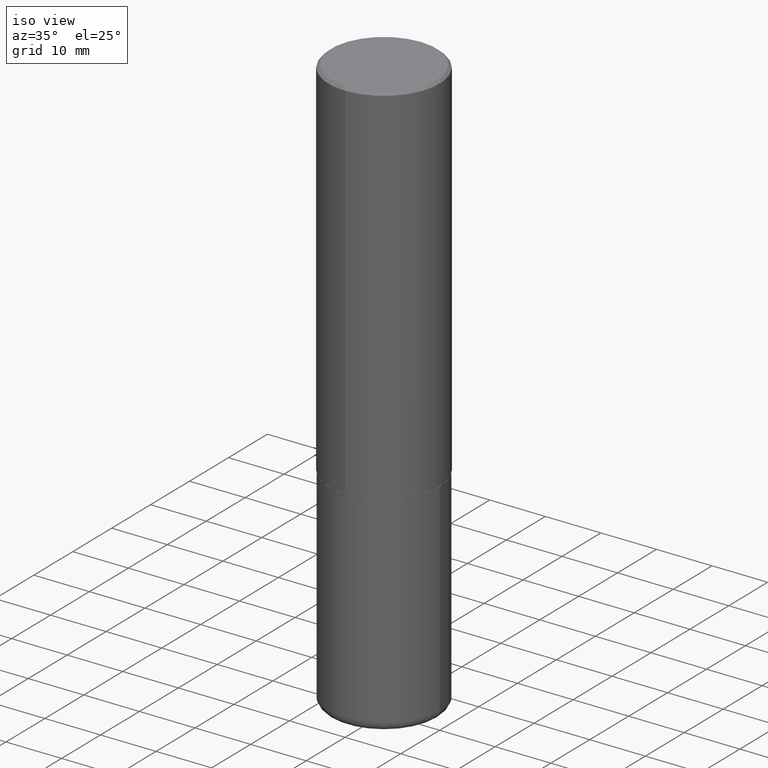
[diagram: clean part render]
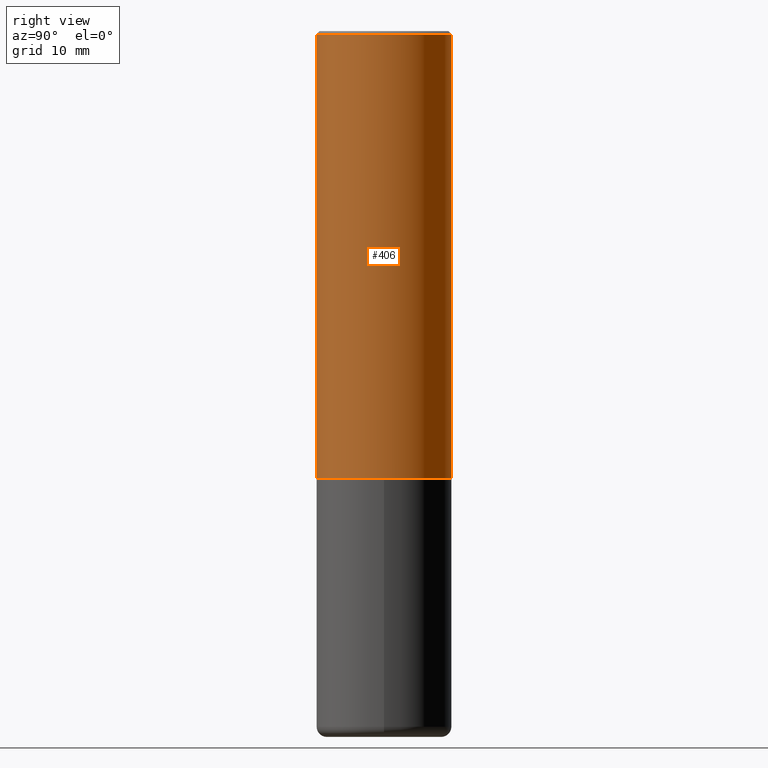
[diagram: tour spotlight — one face highlighted and labeled with its STEP entity id]
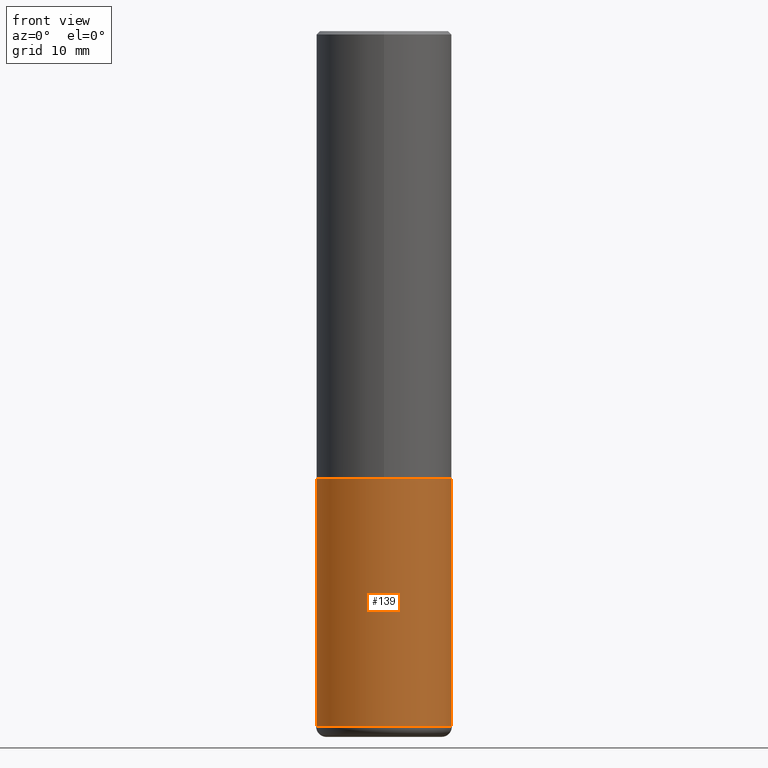
[diagram: tour spotlight — one face highlighted and labeled with its STEP entity id]
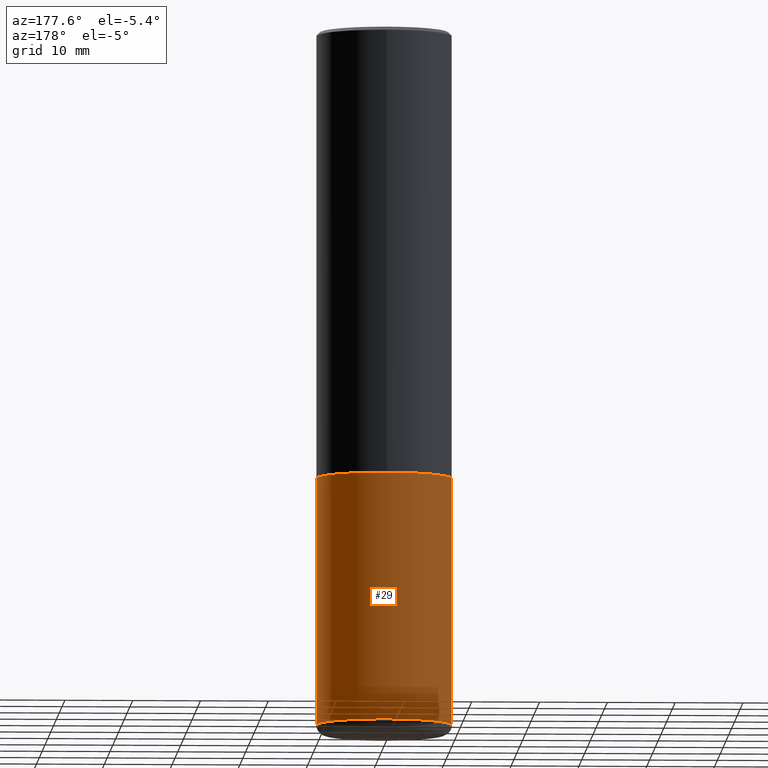
[diagram: tour spotlight — one face highlighted and labeled with its STEP entity id]
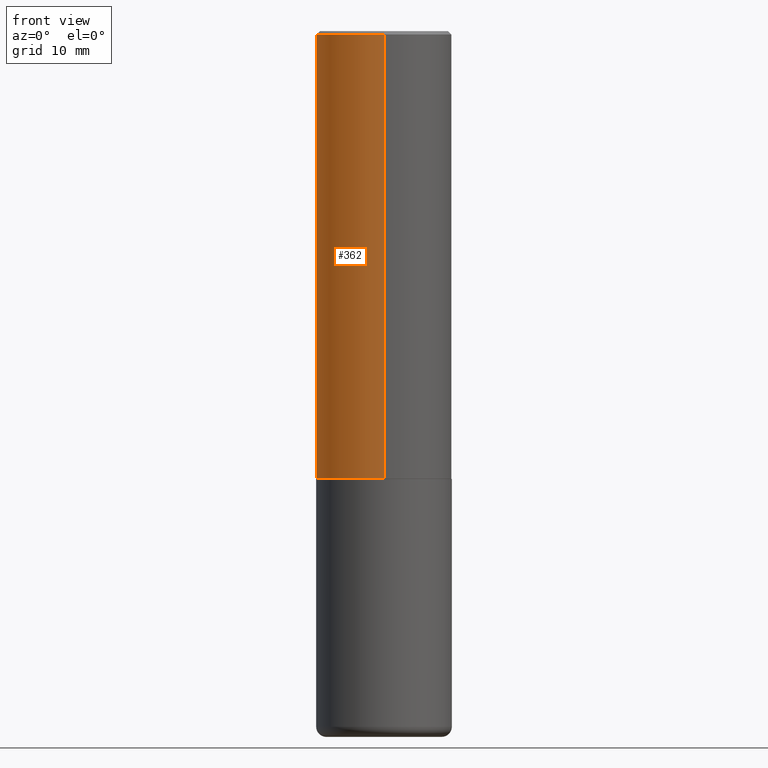
[diagram: tour spotlight — one face highlighted and labeled with its STEP entity id]
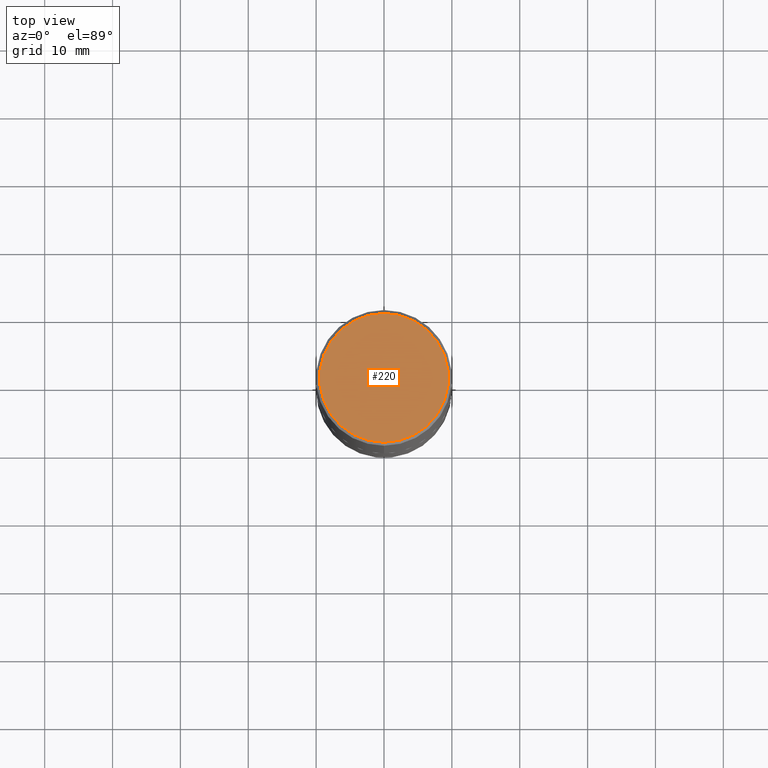
[diagram: tour spotlight — one face highlighted and labeled with its STEP entity id]
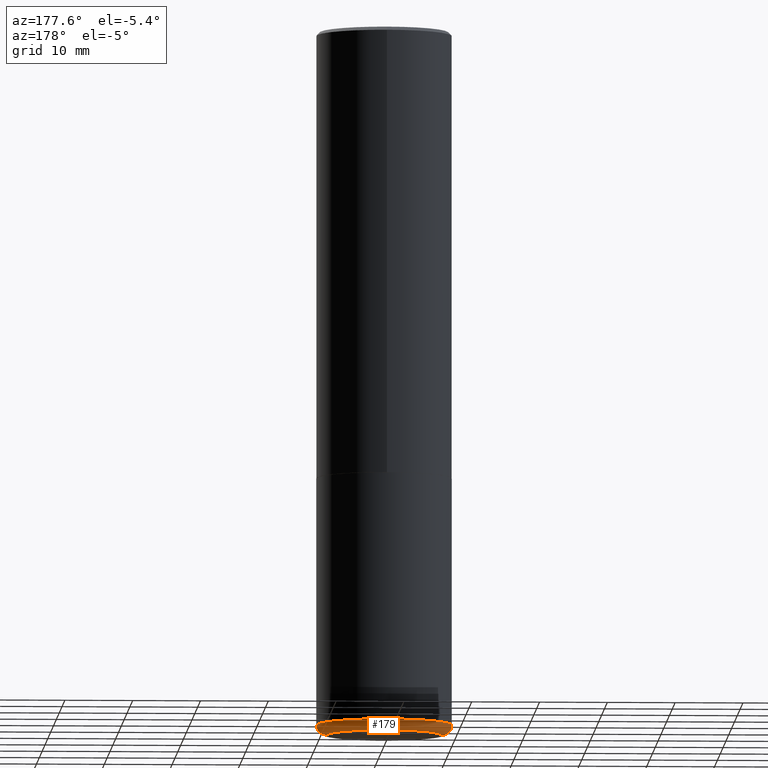
[diagram: tour spotlight — one face highlighted and labeled with its STEP entity id]
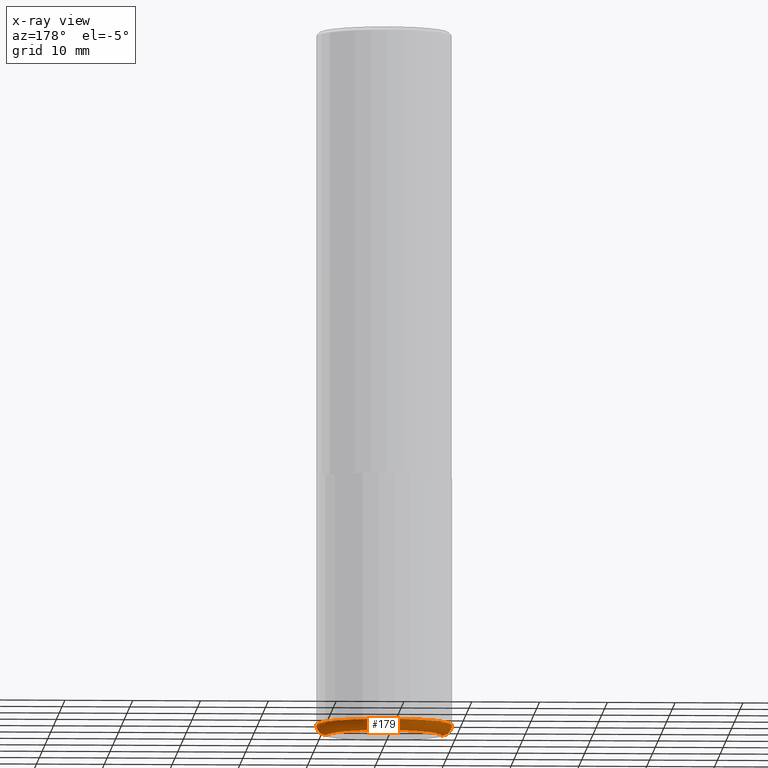
[diagram: x-ray of the same camera — body ghosted, this tour face saturated]
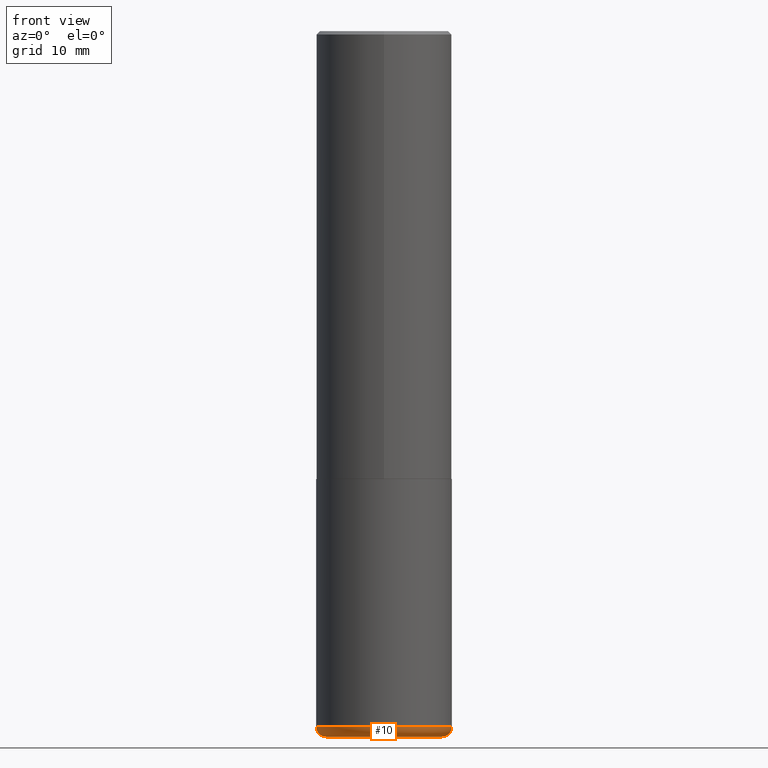
[diagram: tour spotlight — one face highlighted and labeled with its STEP entity id]
A machine part: a face-by-face anatomy tour. The part has 14 B-rep faces; the first image is the clean iso view, then the 7 largest visible faces are spotlighted one at a time (largest first), each with its STEP entity span.

Face 1 — right view, entity #406. In plain terms, the highlighted cylindrical surface (partial cylindrical patch) has radius 10 mm, axis along (-0, 0, 1).
Definition (entity closure, byte-faithful):
#2 = DIRECTION ( 'NONE',  ( -2.446544762670070831E-29, 3.489940507917079412E-15, 1.000000000000000000 ) ) ;
#18 = DIRECTION ( 'NONE',  ( -6.982962677686265133E-15, -1.000000000000000000, 3.489940507917079412E-15 ) ) ;
#39 = VERTEX_POINT ( 'NONE', #307 ) ;
#49 = CARTESIAN_POINT ( 'NONE',  ( 2.797406750687514786E-15, 0.3937000000000001054, -1.373989577966954523E-15 ) ) ;
#53 = AXIS2_PLACEMENT_3D ( 'NONE', #320, #2, #126 ) ;
#74 = ORIENTED_EDGE ( 'NONE', *, *, #256, .T. ) ;
#101 = EDGE_CURVE ( 'NONE', #302, #39, #221, .T. ) ;
#103 = FACE_OUTER_BOUND ( 'NONE', #264, .T. ) ;
#109 = DIRECTION ( 'NONE',  ( -2.446544762670070831E-29, 3.489940507917079412E-15, 1.000000000000000000 ) ) ;
#111 = ORIENTED_EDGE ( 'NONE', *, *, #101, .F. ) ;
#126 = DIRECTION ( 'NONE',  ( -6.982962677686265922E-15, -1.000000000000000000, 4.163344669033672479E-15 ) ) ;
#131 = EDGE_CURVE ( 'NONE', #39, #146, #206, .T. ) ;
#146 = VERTEX_POINT ( 'NONE', #313 ) ;
#157 = AXIS2_PLACEMENT_3D ( 'NONE', #187, #159, #184 ) ;
#159 = DIRECTION ( 'NONE',  ( -2.446544762670070831E-29, 3.489940507917079412E-15, 1.000000000000000000 ) ) ;
#163 = CARTESIAN_POINT ( 'NONE',  ( -2.749192406205021291E-15, -0.3937000000000093758, -2.597399999999999043 ) ) ;
#184 = DIRECTION ( 'NONE',  ( -6.982962677686265922E-15, -1.000000000000000000, 3.491137977679280212E-15 ) ) ;
#187 = CARTESIAN_POINT ( 'NONE',  ( 4.893089525340162610E-31, -6.979881015834188652E-17, -0.02000000000000008715 ) ) ;
#198 = AXIS2_PLACEMENT_3D ( 'NONE', #210, #329, #18 ) ;
#202 = CYLINDRICAL_SURFACE ( 'NONE', #198, 0.3937000000000001054 ) ;
#206 = CIRCLE ( 'NONE', #157, 0.3936999999999999389 ) ;
#210 = CARTESIAN_POINT ( 'NONE',  ( 0.000000000000000000, 0.000000000000000000, 0.000000000000000000 ) ) ;
#216 = CIRCLE ( 'NONE', #53, 0.3937000000000002720 ) ;
#221 = LINE ( 'NONE', #251, #229 ) ;
#222 = VECTOR ( 'NONE', #109, 39.37007874015748143 ) ;
#229 = VECTOR ( 'NONE', #319, 39.37007874015748143 ) ;
#239 = LINE ( 'NONE', #49, #222 ) ;
#247 = ORIENTED_EDGE ( 'NONE', *, *, #372, .T. ) ;
#251 = CARTESIAN_POINT ( 'NONE',  ( -2.749192406205083217E-15, -0.3937000000000001054, 1.373989577966954523E-15 ) ) ;
#256 = EDGE_CURVE ( 'NONE', #302, #365, #216, .T. ) ;
#264 = EDGE_LOOP ( 'NONE', ( #74, #247, #305, #111 ) ) ;
#302 = VERTEX_POINT ( 'NONE', #163 ) ;
#305 = ORIENTED_EDGE ( 'NONE', *, *, #131, .F. ) ;
#307 = CARTESIAN_POINT ( 'NONE',  ( -2.700978061722650858E-15, -0.3937000000000000499, -0.01999999999999870978 ) ) ;
#313 = CARTESIAN_POINT ( 'NONE',  ( 2.749192406205082822E-15, 0.3936999999999998834, -0.02000000000000146105 ) ) ;
#319 = DIRECTION ( 'NONE',  ( -2.446544762670070831E-29, 3.489940507917079412E-15, 1.000000000000000000 ) ) ;
#320 = CARTESIAN_POINT ( 'NONE',  ( 6.354655366559244331E-29, -9.064771475263826350E-15, -2.597400000000000375 ) ) ;
#329 = DIRECTION ( 'NONE',  ( -2.446544762670070831E-29, 3.489940507917079412E-15, 1.000000000000000000 ) ) ;
#365 = VERTEX_POINT ( 'NONE', #393 ) ;
#372 = EDGE_CURVE ( 'NONE', #365, #146, #239, .T. ) ;
#393 = CARTESIAN_POINT ( 'NONE',  ( 2.797406750687547919E-15, 0.3936999999999912792, -2.597400000000002152 ) ) ;
#406 = ADVANCED_FACE ( 'NONE', ( #103 ), #202, .T. ) ;

Face 2 — front view, entity #139. In plain terms, the highlighted cylindrical surface (partial cylindrical patch) has radius 10 mm, axis along (-0, 0, 1).
Definition (entity closure, byte-faithful):
#6 = CARTESIAN_POINT ( 'NONE',  ( 6.354306145991459756E-29, -9.072265110850031044E-15, -2.598400000000000265 ) ) ;
#8 = ORIENTED_EDGE ( 'NONE', *, *, #269, .F. ) ;
#12 = VERTEX_POINT ( 'NONE', #82 ) ;
#38 = DIRECTION ( 'NONE',  ( 1.000000000000000000, -6.982962677686267499E-15, 0.000000000000000000 ) ) ;
#40 = LINE ( 'NONE', #166, #293 ) ;
#48 = ORIENTED_EDGE ( 'NONE', *, *, #148, .T. ) ;
#82 = CARTESIAN_POINT ( 'NONE',  ( -0.3936999999999999389, -1.129211704408011394E-14, -4.035400000000000098 ) ) ;
#87 = CARTESIAN_POINT ( 'NONE',  ( 0.3937000000000000499, -2.749192406205083217E-15, 1.919750796630860172E-29 ) ) ;
#90 = CARTESIAN_POINT ( 'NONE',  ( 0.000000000000000000, 0.000000000000000000, 0.000000000000000000 ) ) ;
#110 = AXIS2_PLACEMENT_3D ( 'NONE', #6, #132, #38 ) ;
#114 = VERTEX_POINT ( 'NONE', #384 ) ;
#124 = CYLINDRICAL_SURFACE ( 'NONE', #324, 0.3937000000000000499 ) ;
#132 = DIRECTION ( 'NONE',  ( -2.445468806185136597E-29, 3.491481338843145583E-15, 1.000000000000000000 ) ) ;
#139 = ADVANCED_FACE ( 'NONE', ( #156 ), #124, .T. ) ;
#148 = EDGE_CURVE ( 'NONE', #212, #178, #258, .T. ) ;
#151 = AXIS2_PLACEMENT_3D ( 'NONE', #259, #294, #230 ) ;
#156 = FACE_OUTER_BOUND ( 'NONE', #204, .T. ) ;
#166 = CARTESIAN_POINT ( 'NONE',  ( -0.3937000000000000499, 2.797406750687514786E-15, -1.936584745033356735E-29 ) ) ;
#178 = VERTEX_POINT ( 'NONE', #382 ) ;
#197 = CIRCLE ( 'NONE', #151, 0.3937000000000000499 ) ;
#204 = EDGE_LOOP ( 'NONE', ( #316, #342, #48, #8 ) ) ;
#212 = VERTEX_POINT ( 'NONE', #359 ) ;
#219 = DIRECTION ( 'NONE',  ( -2.445468806185136877E-29, 3.491481338843145188E-15, 1.000000000000000000 ) ) ;
#230 = DIRECTION ( 'NONE',  ( 1.000000000000000000, -6.982962677686267499E-15, 0.000000000000000000 ) ) ;
#258 = LINE ( 'NONE', #87, #381 ) ;
#259 = CARTESIAN_POINT ( 'NONE',  ( 9.868444820479501934E-29, -1.408952379476762952E-14, -4.035400000000000098 ) ) ;
#261 = EDGE_CURVE ( 'NONE', #12, #114, #40, .T. ) ;
#269 = EDGE_CURVE ( 'NONE', #114, #178, #340, .T. ) ;
#289 = DIRECTION ( 'NONE',  ( -2.445468806185136597E-29, 3.491481338843145583E-15, 1.000000000000000000 ) ) ;
#293 = VECTOR ( 'NONE', #296, 39.37007874015748143 ) ;
#294 = DIRECTION ( 'NONE',  ( -2.445468806185136597E-29, 3.491481338843145583E-15, 1.000000000000000000 ) ) ;
#296 = DIRECTION ( 'NONE',  ( -2.445468806185136877E-29, 3.491481338843145188E-15, 1.000000000000000000 ) ) ;
#316 = ORIENTED_EDGE ( 'NONE', *, *, #261, .F. ) ;
#324 = AXIS2_PLACEMENT_3D ( 'NONE', #90, #289, #417 ) ;
#333 = EDGE_CURVE ( 'NONE', #12, #212, #197, .T. ) ;
#340 = CIRCLE ( 'NONE', #110, 0.3937000000000000499 ) ;
#342 = ORIENTED_EDGE ( 'NONE', *, *, #333, .T. ) ;
#359 = CARTESIAN_POINT ( 'NONE',  ( 0.3936999999999999389, -1.683871620097271431E-14, -4.035400000000000098 ) ) ;
#381 = VECTOR ( 'NONE', #219, 39.37007874015748143 ) ;
#382 = CARTESIAN_POINT ( 'NONE',  ( 0.3937000000000000499, -1.182145751705511584E-14, -2.598400000000000265 ) ) ;
#384 = CARTESIAN_POINT ( 'NONE',  ( -0.3937000000000000499, -8.783487702121316283E-15, -2.598400000000000265 ) ) ;
#417 = DIRECTION ( 'NONE',  ( 1.000000000000000000, -6.982962677686265922E-15, 4.876176775795935793E-29 ) ) ;

Face 3 — auxiliary view, entity #29. In plain terms, the highlighted cylindrical surface (partial cylindrical patch) has radius 10 mm, axis along (-0, 0, 1).
Definition (entity closure, byte-faithful):
#12 = VERTEX_POINT ( 'NONE', #82 ) ;
#29 = ADVANCED_FACE ( 'NONE', ( #246 ), #300, .T. ) ;
#32 = CARTESIAN_POINT ( 'NONE',  ( 9.868444820479501934E-29, -1.408952379476762952E-14, -4.035400000000000098 ) ) ;
#40 = LINE ( 'NONE', #166, #293 ) ;
#73 = DIRECTION ( 'NONE',  ( -2.445468806185136597E-29, 3.491481338843145583E-15, 1.000000000000000000 ) ) ;
#82 = CARTESIAN_POINT ( 'NONE',  ( -0.3936999999999999389, -1.129211704408011394E-14, -4.035400000000000098 ) ) ;
#87 = CARTESIAN_POINT ( 'NONE',  ( 0.3937000000000000499, -2.749192406205083217E-15, 1.919750796630860172E-29 ) ) ;
#94 = DIRECTION ( 'NONE',  ( 1.000000000000000000, -6.982962677686267499E-15, 0.000000000000000000 ) ) ;
#106 = ORIENTED_EDGE ( 'NONE', *, *, #353, .F. ) ;
#114 = VERTEX_POINT ( 'NONE', #384 ) ;
#136 = DIRECTION ( 'NONE',  ( -2.445468806185136597E-29, 3.491481338843145583E-15, 1.000000000000000000 ) ) ;
#145 = CARTESIAN_POINT ( 'NONE',  ( 0.000000000000000000, 0.000000000000000000, 0.000000000000000000 ) ) ;
#148 = EDGE_CURVE ( 'NONE', #212, #178, #258, .T. ) ;
#166 = CARTESIAN_POINT ( 'NONE',  ( -0.3937000000000000499, 2.797406750687514786E-15, -1.936584745033356735E-29 ) ) ;
#167 = ORIENTED_EDGE ( 'NONE', *, *, #310, .T. ) ;
#171 = ORIENTED_EDGE ( 'NONE', *, *, #148, .F. ) ;
#177 = AXIS2_PLACEMENT_3D ( 'NONE', #145, #281, #338 ) ;
#178 = VERTEX_POINT ( 'NONE', #382 ) ;
#200 = EDGE_LOOP ( 'NONE', ( #167, #208, #106, #171 ) ) ;
#208 = ORIENTED_EDGE ( 'NONE', *, *, #261, .T. ) ;
#212 = VERTEX_POINT ( 'NONE', #359 ) ;
#219 = DIRECTION ( 'NONE',  ( -2.445468806185136877E-29, 3.491481338843145188E-15, 1.000000000000000000 ) ) ;
#246 = FACE_OUTER_BOUND ( 'NONE', #200, .T. ) ;
#258 = LINE ( 'NONE', #87, #381 ) ;
#261 = EDGE_CURVE ( 'NONE', #12, #114, #40, .T. ) ;
#263 = DIRECTION ( 'NONE',  ( 1.000000000000000000, -6.982962677686267499E-15, 0.000000000000000000 ) ) ;
#281 = DIRECTION ( 'NONE',  ( -2.445468806185136597E-29, 3.491481338843145583E-15, 1.000000000000000000 ) ) ;
#293 = VECTOR ( 'NONE', #296, 39.37007874015748143 ) ;
#296 = DIRECTION ( 'NONE',  ( -2.445468806185136877E-29, 3.491481338843145188E-15, 1.000000000000000000 ) ) ;
#300 = CYLINDRICAL_SURFACE ( 'NONE', #177, 0.3937000000000000499 ) ;
#306 = CIRCLE ( 'NONE', #331, 0.3937000000000000499 ) ;
#310 = EDGE_CURVE ( 'NONE', #212, #12, #306, .T. ) ;
#331 = AXIS2_PLACEMENT_3D ( 'NONE', #32, #136, #94 ) ;
#338 = DIRECTION ( 'NONE',  ( 1.000000000000000000, -6.982962677686265922E-15, 4.876176775795935793E-29 ) ) ;
#351 = AXIS2_PLACEMENT_3D ( 'NONE', #385, #73, #263 ) ;
#353 = EDGE_CURVE ( 'NONE', #178, #114, #386, .T. ) ;
#359 = CARTESIAN_POINT ( 'NONE',  ( 0.3936999999999999389, -1.683871620097271431E-14, -4.035400000000000098 ) ) ;
#381 = VECTOR ( 'NONE', #219, 39.37007874015748143 ) ;
#382 = CARTESIAN_POINT ( 'NONE',  ( 0.3937000000000000499, -1.182145751705511584E-14, -2.598400000000000265 ) ) ;
#384 = CARTESIAN_POINT ( 'NONE',  ( -0.3937000000000000499, -8.783487702121316283E-15, -2.598400000000000265 ) ) ;
#385 = CARTESIAN_POINT ( 'NONE',  ( 6.354306145991459756E-29, -9.072265110850031044E-15, -2.598400000000000265 ) ) ;
#386 = CIRCLE ( 'NONE', #351, 0.3937000000000000499 ) ;

Face 4 — front view, entity #362. In plain terms, the highlighted cylindrical surface (partial cylindrical patch) has radius 10 mm, axis along (-0, 0, 1).
Definition (entity closure, byte-faithful):
#1 = CIRCLE ( 'NONE', #373, 0.3937000000000002720 ) ;
#14 = ORIENTED_EDGE ( 'NONE', *, *, #154, .T. ) ;
#24 = DIRECTION ( 'NONE',  ( -2.446544762670070831E-29, 3.489940507917079412E-15, 1.000000000000000000 ) ) ;
#35 = AXIS2_PLACEMENT_3D ( 'NONE', #265, #91, #68 ) ;
#39 = VERTEX_POINT ( 'NONE', #307 ) ;
#49 = CARTESIAN_POINT ( 'NONE',  ( 2.797406750687514786E-15, 0.3937000000000001054, -1.373989577966954523E-15 ) ) ;
#56 = DIRECTION ( 'NONE',  ( -6.982962677686265922E-15, -1.000000000000000000, 3.491137977679280212E-15 ) ) ;
#63 = EDGE_CURVE ( 'NONE', #146, #39, #168, .T. ) ;
#68 = DIRECTION ( 'NONE',  ( -6.982962677686265133E-15, -1.000000000000000000, 3.489940507917079412E-15 ) ) ;
#79 = AXIS2_PLACEMENT_3D ( 'NONE', #85, #257, #56 ) ;
#85 = CARTESIAN_POINT ( 'NONE',  ( 4.893089525340162610E-31, -6.979881015834188652E-17, -0.02000000000000008715 ) ) ;
#91 = DIRECTION ( 'NONE',  ( -2.446544762670070831E-29, 3.489940507917079412E-15, 1.000000000000000000 ) ) ;
#96 = CYLINDRICAL_SURFACE ( 'NONE', #35, 0.3937000000000001054 ) ;
#101 = EDGE_CURVE ( 'NONE', #302, #39, #221, .T. ) ;
#109 = DIRECTION ( 'NONE',  ( -2.446544762670070831E-29, 3.489940507917079412E-15, 1.000000000000000000 ) ) ;
#142 = ORIENTED_EDGE ( 'NONE', *, *, #101, .T. ) ;
#146 = VERTEX_POINT ( 'NONE', #313 ) ;
#154 = EDGE_CURVE ( 'NONE', #365, #302, #1, .T. ) ;
#163 = CARTESIAN_POINT ( 'NONE',  ( -2.749192406205021291E-15, -0.3937000000000093758, -2.597399999999999043 ) ) ;
#168 = CIRCLE ( 'NONE', #79, 0.3936999999999999389 ) ;
#221 = LINE ( 'NONE', #251, #229 ) ;
#222 = VECTOR ( 'NONE', #109, 39.37007874015748143 ) ;
#229 = VECTOR ( 'NONE', #319, 39.37007874015748143 ) ;
#239 = LINE ( 'NONE', #49, #222 ) ;
#251 = CARTESIAN_POINT ( 'NONE',  ( -2.749192406205083217E-15, -0.3937000000000001054, 1.373989577966954523E-15 ) ) ;
#257 = DIRECTION ( 'NONE',  ( -2.446544762670070831E-29, 3.489940507917079412E-15, 1.000000000000000000 ) ) ;
#265 = CARTESIAN_POINT ( 'NONE',  ( 0.000000000000000000, 0.000000000000000000, 0.000000000000000000 ) ) ;
#272 = ORIENTED_EDGE ( 'NONE', *, *, #372, .F. ) ;
#302 = VERTEX_POINT ( 'NONE', #163 ) ;
#307 = CARTESIAN_POINT ( 'NONE',  ( -2.700978061722650858E-15, -0.3937000000000000499, -0.01999999999999870978 ) ) ;
#313 = CARTESIAN_POINT ( 'NONE',  ( 2.749192406205082822E-15, 0.3936999999999998834, -0.02000000000000146105 ) ) ;
#314 = CARTESIAN_POINT ( 'NONE',  ( 6.354655366559244331E-29, -9.064771475263826350E-15, -2.597400000000000375 ) ) ;
#319 = DIRECTION ( 'NONE',  ( -2.446544762670070831E-29, 3.489940507917079412E-15, 1.000000000000000000 ) ) ;
#358 = EDGE_LOOP ( 'NONE', ( #272, #14, #142, #367 ) ) ;
#362 = ADVANCED_FACE ( 'NONE', ( #391 ), #96, .T. ) ;
#365 = VERTEX_POINT ( 'NONE', #393 ) ;
#367 = ORIENTED_EDGE ( 'NONE', *, *, #63, .F. ) ;
#372 = EDGE_CURVE ( 'NONE', #365, #146, #239, .T. ) ;
#373 = AXIS2_PLACEMENT_3D ( 'NONE', #314, #24, #412 ) ;
#391 = FACE_OUTER_BOUND ( 'NONE', #358, .T. ) ;
#393 = CARTESIAN_POINT ( 'NONE',  ( 2.797406750687547919E-15, 0.3936999999999912792, -2.597400000000002152 ) ) ;
#412 = DIRECTION ( 'NONE',  ( -6.982962677686265922E-15, -1.000000000000000000, 4.163344669033672479E-15 ) ) ;

Face 5 — top view, entity #220. In plain terms, the highlighted planar face has unit normal (0, -0, -1).
Definition (entity closure, byte-faithful):
#44 = VERTEX_POINT ( 'NONE', #115 ) ;
#75 = DIRECTION ( 'NONE',  ( 6.982962677686265922E-15, 1.000000000000000000, -3.489940507917079412E-15 ) ) ;
#86 = AXIS2_PLACEMENT_3D ( 'NONE', #356, #129, #325 ) ;
#100 = FACE_OUTER_BOUND ( 'NONE', #408, .T. ) ;
#115 = CARTESIAN_POINT ( 'NONE',  ( 2.679362779428219524E-15, 0.3736999999999999211, -1.227933351503875560E-15 ) ) ;
#128 = PLANE ( 'NONE',  #260 ) ;
#129 = DIRECTION ( 'NONE',  ( -2.446544762670070831E-29, 3.489940507917079412E-15, 1.000000000000000000 ) ) ;
#144 = CIRCLE ( 'NONE', #86, 0.3736999999999999211 ) ;
#183 = EDGE_CURVE ( 'NONE', #44, #328, #413, .T. ) ;
#193 = DIRECTION ( 'NONE',  ( -2.446544762670070831E-29, 3.489940507917079412E-15, 1.000000000000000000 ) ) ;
#209 = ORIENTED_EDGE ( 'NONE', *, *, #183, .T. ) ;
#220 = ADVANCED_FACE ( 'NONE', ( #100 ), #128, .F. ) ;
#228 = CARTESIAN_POINT ( 'NONE',  ( -1.865671824751044752E-45, 2.661338461909964550E-31, 7.625741630473653378E-17 ) ) ;
#236 = CARTESIAN_POINT ( 'NONE',  ( 2.609533152651356620E-15, 0.3736999999999999211, -1.266062059656243932E-15 ) ) ;
#243 = ORIENTED_EDGE ( 'NONE', *, *, #274, .T. ) ;
#260 = AXIS2_PLACEMENT_3D ( 'NONE', #236, #322, #75 ) ;
#274 = EDGE_CURVE ( 'NONE', #328, #44, #144, .T. ) ;
#290 = CARTESIAN_POINT ( 'NONE',  ( -2.632373081744935132E-15, -0.3736999999999999211, 1.380448184113348850E-15 ) ) ;
#298 = AXIS2_PLACEMENT_3D ( 'NONE', #228, #193, #352 ) ;
#322 = DIRECTION ( 'NONE',  ( 2.446544762670070831E-29, -3.489940507917079412E-15, -1.000000000000000000 ) ) ;
#325 = DIRECTION ( 'NONE',  ( -6.982962677686265133E-15, -1.000000000000000000, 3.489940507917079017E-15 ) ) ;
#328 = VERTEX_POINT ( 'NONE', #290 ) ;
#352 = DIRECTION ( 'NONE',  ( -6.982962677686265133E-15, -1.000000000000000000, 3.489940507917079017E-15 ) ) ;
#356 = CARTESIAN_POINT ( 'NONE',  ( -1.865671824751044752E-45, 2.661338461909964550E-31, 7.625741630473653378E-17 ) ) ;
#408 = EDGE_LOOP ( 'NONE', ( #209, #243 ) ) ;
#413 = CIRCLE ( 'NONE', #298, 0.3736999999999999211 ) ;

Face 6 — auxiliary view, entity #179. An x-ray twin of the same camera follows (body ghosted, this face saturated) — the face is partly hidden behind the body. In plain terms, the highlighted toroidal blend (fillet) surface has major radius 8.4988 mm and minor (blend) radius 1.5011 mm.
Definition (entity closure, byte-faithful):
#4 = DIRECTION ( 'NONE',  ( -2.445468806185136597E-29, 3.491481338843145583E-15, 1.000000000000000000 ) ) ;
#5 = DIRECTION ( 'NONE',  ( 1.000000000000000000, -6.982962677686269077E-15, 4.883557194083114022E-29 ) ) ;
#12 = VERTEX_POINT ( 'NONE', #82 ) ;
#17 = VERTEX_POINT ( 'NONE', #170 ) ;
#28 = ORIENTED_EDGE ( 'NONE', *, *, #310, .F. ) ;
#32 = CARTESIAN_POINT ( 'NONE',  ( 9.868444820479501934E-29, -1.408952379476762952E-14, -4.035400000000000098 ) ) ;
#34 = EDGE_CURVE ( 'NONE', #17, #12, #266, .T. ) ;
#43 = TOROIDAL_SURFACE ( 'NONE', #366, 0.3346000000000000085, 0.05909999999999995812 ) ;
#50 = CARTESIAN_POINT ( 'NONE',  ( -0.3346000000000000085, -1.171204780091433423E-14, -4.035400000000000098 ) ) ;
#82 = CARTESIAN_POINT ( 'NONE',  ( -0.3936999999999999389, -1.129211704408011394E-14, -4.035400000000000098 ) ) ;
#93 = AXIS2_PLACEMENT_3D ( 'NONE', #201, #295, #233 ) ;
#94 = DIRECTION ( 'NONE',  ( 1.000000000000000000, -6.982962677686267499E-15, 0.000000000000000000 ) ) ;
#95 = CARTESIAN_POINT ( 'NONE',  ( 9.868444820479501934E-29, -1.408952379476762952E-14, -4.035400000000000098 ) ) ;
#97 = ORIENTED_EDGE ( 'NONE', *, *, #34, .T. ) ;
#99 = AXIS2_PLACEMENT_3D ( 'NONE', #327, #355, #262 ) ;
#134 = CIRCLE ( 'NONE', #99, 0.05909999999999992343 ) ;
#136 = DIRECTION ( 'NONE',  ( -2.445468806185136597E-29, 3.491481338843145583E-15, 1.000000000000000000 ) ) ;
#137 = EDGE_LOOP ( 'NONE', ( #369, #97, #28, #309 ) ) ;
#170 = CARTESIAN_POINT ( 'NONE',  ( -0.3346000000000000085, -1.160525569606004165E-14, -4.094500000000000028 ) ) ;
#179 = ADVANCED_FACE ( 'NONE', ( #285 ), #43, .T. ) ;
#185 = CIRCLE ( 'NONE', #93, 0.3346000000000000085 ) ;
#201 = CARTESIAN_POINT ( 'NONE',  ( 1.001297202692504215E-28, -1.429587034189326149E-14, -4.094500000000000028 ) ) ;
#212 = VERTEX_POINT ( 'NONE', #359 ) ;
#225 = VERTEX_POINT ( 'NONE', #232 ) ;
#232 = CARTESIAN_POINT ( 'NONE',  ( 0.3346000000000000085, -1.663236965384708707E-14, -4.094500000000000028 ) ) ;
#233 = DIRECTION ( 'NONE',  ( 1.000000000000000000, -6.982962677686269866E-15, 0.000000000000000000 ) ) ;
#238 = EDGE_CURVE ( 'NONE', #225, #17, #185, .T. ) ;
#244 = EDGE_CURVE ( 'NONE', #225, #212, #134, .T. ) ;
#262 = DIRECTION ( 'NONE',  ( 1.000000000000000000, -6.982962677686271444E-15, 0.000000000000000000 ) ) ;
#266 = CIRCLE ( 'NONE', #357, 0.05909999999999992343 ) ;
#278 = DIRECTION ( 'NONE',  ( 7.105427357601001859E-15, 1.000000000000000000, -3.491481338843145583E-15 ) ) ;
#285 = FACE_OUTER_BOUND ( 'NONE', #137, .T. ) ;
#295 = DIRECTION ( 'NONE',  ( -2.445468806185136597E-29, 3.491481338843145583E-15, 1.000000000000000000 ) ) ;
#306 = CIRCLE ( 'NONE', #331, 0.3937000000000000499 ) ;
#309 = ORIENTED_EDGE ( 'NONE', *, *, #244, .F. ) ;
#310 = EDGE_CURVE ( 'NONE', #212, #12, #306, .T. ) ;
#327 = CARTESIAN_POINT ( 'NONE',  ( 0.3346000000000000085, -1.642602310672145667E-14, -4.035400000000000098 ) ) ;
#331 = AXIS2_PLACEMENT_3D ( 'NONE', #32, #136, #94 ) ;
#355 = DIRECTION ( 'NONE',  ( -6.982962677686266711E-15, -1.000000000000000000, 3.491481338843145583E-15 ) ) ;
#357 = AXIS2_PLACEMENT_3D ( 'NONE', #50, #278, #370 ) ;
#359 = CARTESIAN_POINT ( 'NONE',  ( 0.3936999999999999389, -1.683871620097271431E-14, -4.035400000000000098 ) ) ;
#366 = AXIS2_PLACEMENT_3D ( 'NONE', #95, #4, #5 ) ;
#369 = ORIENTED_EDGE ( 'NONE', *, *, #238, .T. ) ;
#370 = DIRECTION ( 'NONE',  ( -1.000000000000000000, 7.105427357601001859E-15, 0.000000000000000000 ) ) ;

Face 7 — front view, entity #10. In plain terms, the highlighted toroidal blend (fillet) surface has major radius 8.4988 mm and minor (blend) radius 1.5011 mm.
Definition (entity closure, byte-faithful):
#10 = ADVANCED_FACE ( 'NONE', ( #147 ), #22, .T. ) ;
#12 = VERTEX_POINT ( 'NONE', #82 ) ;
#17 = VERTEX_POINT ( 'NONE', #170 ) ;
#22 = TOROIDAL_SURFACE ( 'NONE', #30, 0.3346000000000000085, 0.05909999999999995812 ) ;
#30 = AXIS2_PLACEMENT_3D ( 'NONE', #271, #214, #339 ) ;
#34 = EDGE_CURVE ( 'NONE', #17, #12, #266, .T. ) ;
#41 = ORIENTED_EDGE ( 'NONE', *, *, #333, .F. ) ;
#50 = CARTESIAN_POINT ( 'NONE',  ( -0.3346000000000000085, -1.171204780091433423E-14, -4.035400000000000098 ) ) ;
#82 = CARTESIAN_POINT ( 'NONE',  ( -0.3936999999999999389, -1.129211704408011394E-14, -4.035400000000000098 ) ) ;
#99 = AXIS2_PLACEMENT_3D ( 'NONE', #327, #355, #262 ) ;
#104 = ORIENTED_EDGE ( 'NONE', *, *, #315, .T. ) ;
#134 = CIRCLE ( 'NONE', #99, 0.05909999999999992343 ) ;
#138 = ORIENTED_EDGE ( 'NONE', *, *, #34, .F. ) ;
#147 = FACE_OUTER_BOUND ( 'NONE', #392, .T. ) ;
#151 = AXIS2_PLACEMENT_3D ( 'NONE', #259, #294, #230 ) ;
#160 = DIRECTION ( 'NONE',  ( -2.445468806185136597E-29, 3.491481338843145583E-15, 1.000000000000000000 ) ) ;
#170 = CARTESIAN_POINT ( 'NONE',  ( -0.3346000000000000085, -1.160525569606004165E-14, -4.094500000000000028 ) ) ;
#191 = AXIS2_PLACEMENT_3D ( 'NONE', #199, #160, #354 ) ;
#197 = CIRCLE ( 'NONE', #151, 0.3937000000000000499 ) ;
#199 = CARTESIAN_POINT ( 'NONE',  ( 1.001297202692504215E-28, -1.429587034189326149E-14, -4.094500000000000028 ) ) ;
#212 = VERTEX_POINT ( 'NONE', #359 ) ;
#214 = DIRECTION ( 'NONE',  ( -2.445468806185136597E-29, 3.491481338843145583E-15, 1.000000000000000000 ) ) ;
#225 = VERTEX_POINT ( 'NONE', #232 ) ;
#230 = DIRECTION ( 'NONE',  ( 1.000000000000000000, -6.982962677686267499E-15, 0.000000000000000000 ) ) ;
#232 = CARTESIAN_POINT ( 'NONE',  ( 0.3346000000000000085, -1.663236965384708707E-14, -4.094500000000000028 ) ) ;
#244 = EDGE_CURVE ( 'NONE', #225, #212, #134, .T. ) ;
#259 = CARTESIAN_POINT ( 'NONE',  ( 9.868444820479501934E-29, -1.408952379476762952E-14, -4.035400000000000098 ) ) ;
#262 = DIRECTION ( 'NONE',  ( 1.000000000000000000, -6.982962677686271444E-15, 0.000000000000000000 ) ) ;
#266 = CIRCLE ( 'NONE', #357, 0.05909999999999992343 ) ;
#271 = CARTESIAN_POINT ( 'NONE',  ( 9.868444820479501934E-29, -1.408952379476762952E-14, -4.035400000000000098 ) ) ;
#275 = CIRCLE ( 'NONE', #191, 0.3346000000000000085 ) ;
#278 = DIRECTION ( 'NONE',  ( 7.105427357601001859E-15, 1.000000000000000000, -3.491481338843145583E-15 ) ) ;
#294 = DIRECTION ( 'NONE',  ( -2.445468806185136597E-29, 3.491481338843145583E-15, 1.000000000000000000 ) ) ;
#315 = EDGE_CURVE ( 'NONE', #17, #225, #275, .T. ) ;
#327 = CARTESIAN_POINT ( 'NONE',  ( 0.3346000000000000085, -1.642602310672145667E-14, -4.035400000000000098 ) ) ;
#333 = EDGE_CURVE ( 'NONE', #12, #212, #197, .T. ) ;
#339 = DIRECTION ( 'NONE',  ( 1.000000000000000000, -6.982962677686269077E-15, 4.883557194083114022E-29 ) ) ;
#354 = DIRECTION ( 'NONE',  ( 1.000000000000000000, -6.982962677686269866E-15, 0.000000000000000000 ) ) ;
#355 = DIRECTION ( 'NONE',  ( -6.982962677686266711E-15, -1.000000000000000000, 3.491481338843145583E-15 ) ) ;
#357 = AXIS2_PLACEMENT_3D ( 'NONE', #50, #278, #370 ) ;
#359 = CARTESIAN_POINT ( 'NONE',  ( 0.3936999999999999389, -1.683871620097271431E-14, -4.035400000000000098 ) ) ;
#370 = DIRECTION ( 'NONE',  ( -1.000000000000000000, 7.105427357601001859E-15, 0.000000000000000000 ) ) ;
#371 = ORIENTED_EDGE ( 'NONE', *, *, #244, .T. ) ;
#392 = EDGE_LOOP ( 'NONE', ( #138, #104, #371, #41 ) ) ;